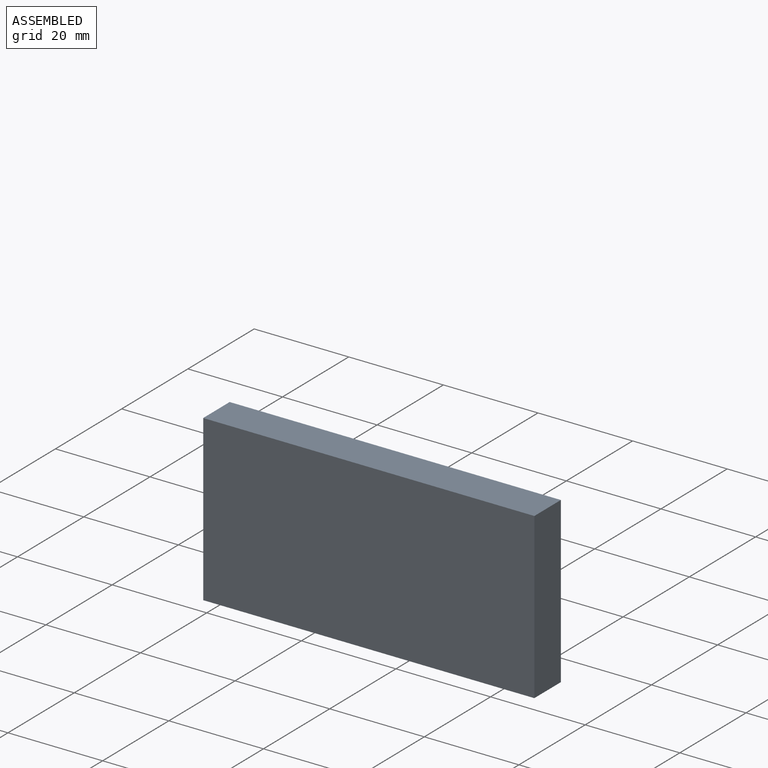
[diagram: assembled view]
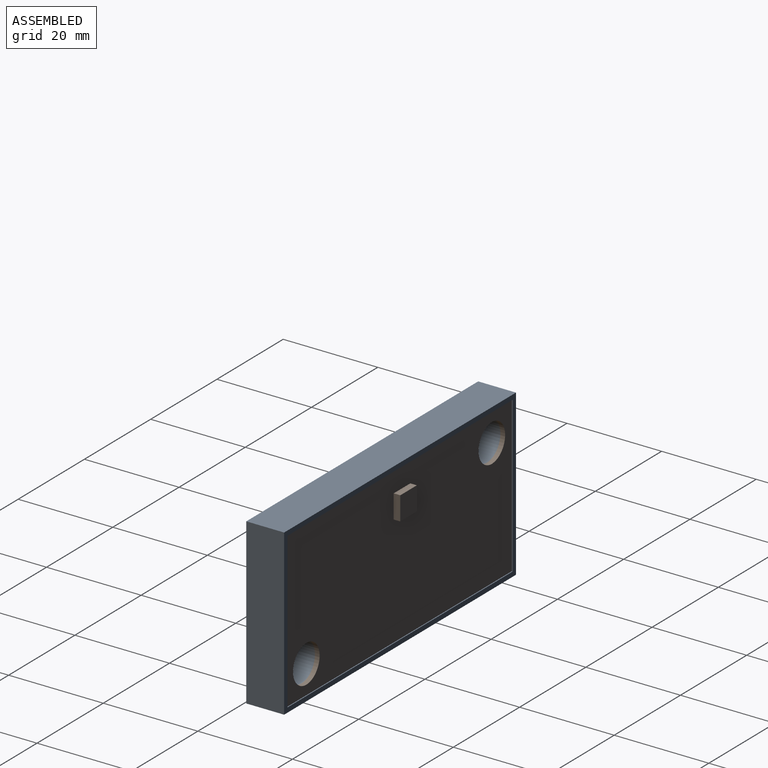
[diagram: assembled view, second angle]
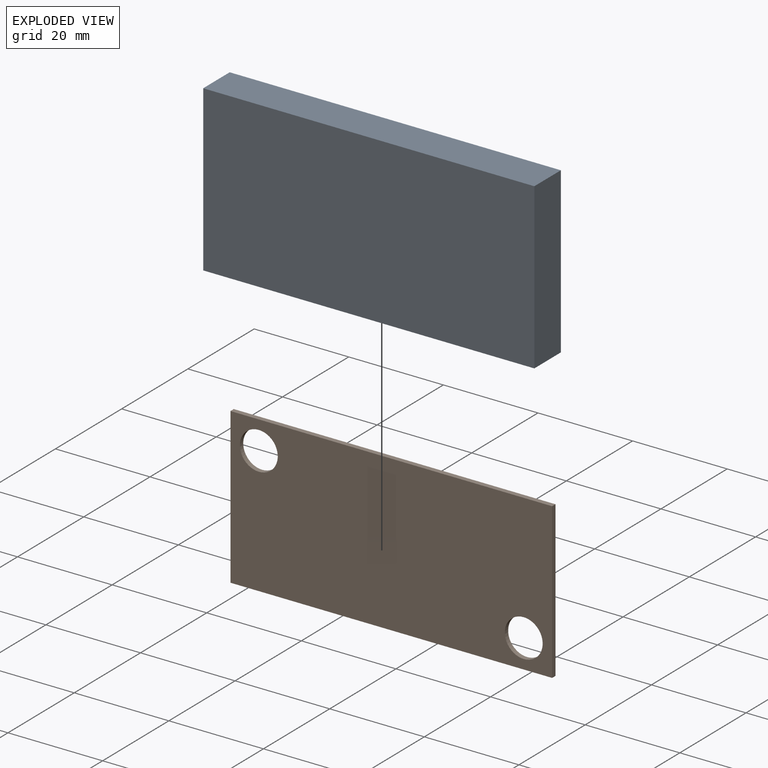
[diagram: exploded view]
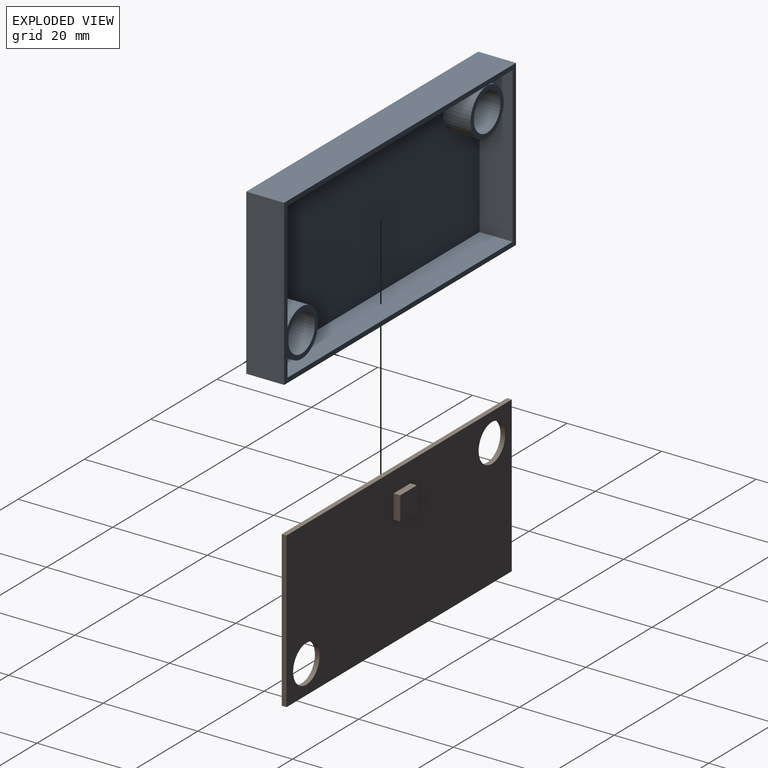
[diagram: exploded view, second angle]
ASSEMBLY  parts=2 mates=3
PART A: 19 faces, bbox 70x8x34.8 mm
  f0: plane 70x34.8mm, normal (0,1,0), area 205.6mm2, adj f1,f2,f3,f4,f6,f7,f8,f9
  f1: plane 70x8mm, normal (0,0,-1), area 560mm2, adj f0,f2,f4,f5
  f2: plane 34.8x8mm, normal (1,0,0), area 278.4mm2, adj f0,f1,f3,f5
  f3: plane 70x8mm, normal (0,0,1), area 560mm2, adj f0,f2,f4,f5
  f4: plane 34.8x8mm, normal (-1,0,0), area 278.4mm2, adj f0,f1,f3,f5
  f5: plane 70x34.8mm, normal (0,-1,0), area 2436mm2, adj f1,f2,f3,f4
  f6: plane 68x7mm, normal (0,0,1), area 476mm2, adj f0,f7,f9,f10
  f7: plane 32.8x7mm, normal (-1,0,0), area 229.6mm2, adj f0,f6,f8,f10
  f8: plane 68x7mm, normal (0,0,-1), area 476mm2, adj f0,f7,f9,f10
  f9: plane 32.8x7mm, normal (1,0,0), area 229.6mm2, adj f0,f6,f8,f10
  f10: plane 68x32.8mm, normal (0,1,0), area 2073.3mm2, adj f6,f7,f8,f9,f12,f16
  f11: cylinder r=4mm len=8mm, axis (0,-1,0), area 145.8mm2, adj f13,f14
  f12: cylinder r=5mm len=10mm, axis (0,-1,0), area 182.2mm2, adj f10,f13
  f13: plane 10x10mm, normal (0,1,0), area 28.3mm2, adj f11,f12
  f14: plane 8x8mm, normal (0,1,0), area 50.3mm2, adj f11
  f15: cylinder r=4mm len=8mm, axis (0,-1,0), area 145.8mm2, adj f17,f18
  f16: cylinder r=5mm len=10mm, axis (0,-1,0), area 182.2mm2, adj f10,f17
  f17: plane 10x10mm, normal (0,1,0), area 28.3mm2, adj f15,f16
  f18: plane 8x8mm, normal (0,1,0), area 50.3mm2, adj f15
PART B: 13 faces, bbox 68x2.4x32.8 mm
  f0: plane 32.8x1mm, normal (1,0,0), area 32.8mm2, adj f1,f3,f4,f5
  f1: plane 68x1mm, normal (0,0,1), area 68mm2, adj f0,f2,f4,f5
  f2: plane 32.8x1mm, normal (-1,0,0), area 32.8mm2, adj f1,f3,f4,f5
  f3: plane 68x1mm, normal (0,0,-1), area 68mm2, adj f0,f2,f4,f5
  f4: plane 68x32.8mm, normal (0,-1,0), area 2129.9mm2, adj f0,f1,f2,f3,f6,f7
  f5: plane 68x32.8mm, normal (0,1,0), area 2104.9mm2, adj f0,f1,f2,f3,f6,f7,f8,f9
  f6: cylinder r=4mm len=8mm, axis (0,1,0), area 25.1mm2, adj f4,f5
  f7: cylinder r=4mm len=8mm, axis (0,1,0), area 25.1mm2, adj f4,f5
  f8: plane 5x1.4mm, normal (0,0,1), area 7mm2, adj f5,f9,f11,f12
  f9: plane 5x1.4mm, normal (1,0,0), area 7mm2, adj f5,f8,f10,f12
  f10: plane 5x1.4mm, normal (0,0,-1), area 7mm2, adj f5,f9,f11,f12
  f11: plane 5x1.4mm, normal (-1,0,0), area 7mm2, adj f5,f8,f10,f12
  f12: plane 5x5mm, normal (0,1,0), area 25mm2, adj f8,f9,f10,f11
PLACE A t=(12.98,29.83,-8.99)mm
PLACE B t=(12.98,29.63,-8.99)mm
MATE planar B.f1 <-> A.f8  axis (0,0,1) through (12.98,29.13,7.41)mm
MATE planar A.f11 <-> B.f4  axis (0,1,0) through (-15.02,28.63,1.41)mm
MATE planar B.f0 <-> A.f7  axis (1,0,0) through (46.98,29.13,-8.99)mm
